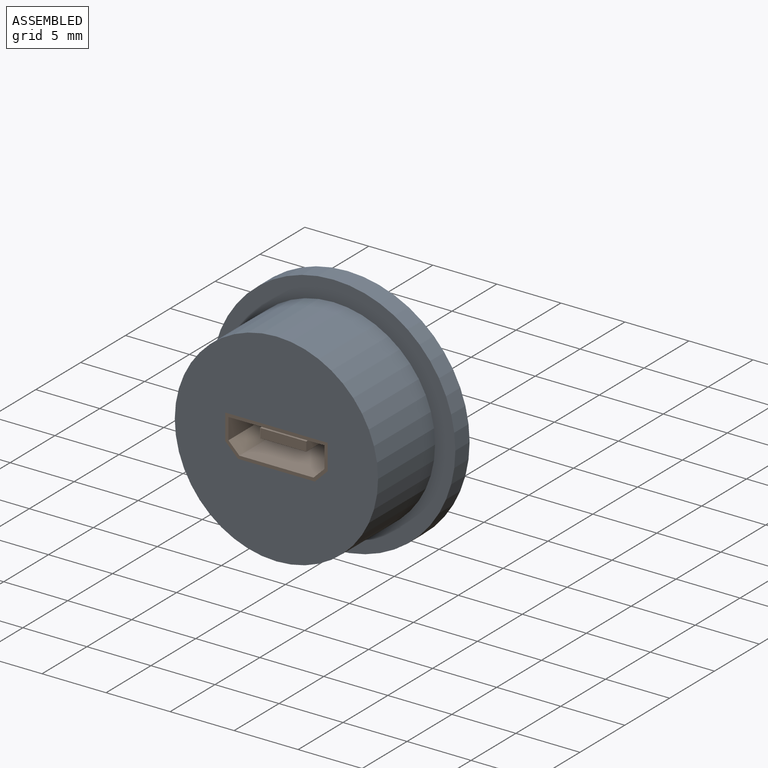
[diagram: assembled view]
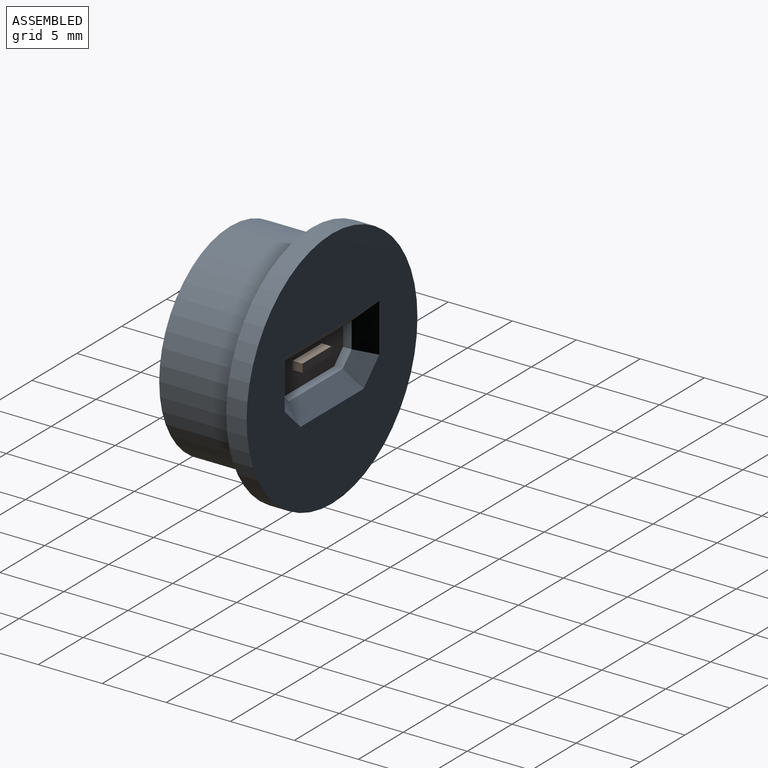
[diagram: assembled view, second angle]
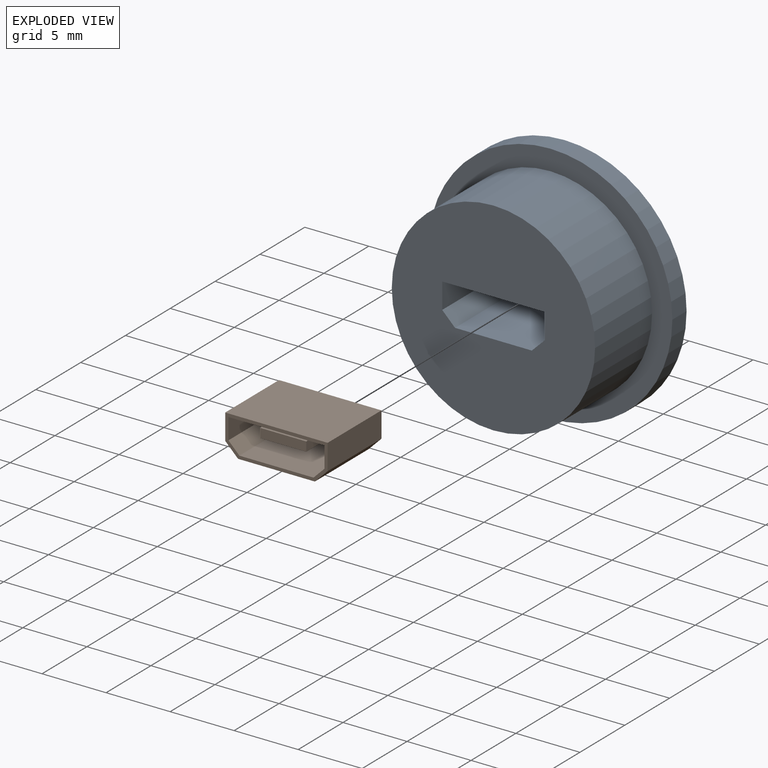
[diagram: exploded view]
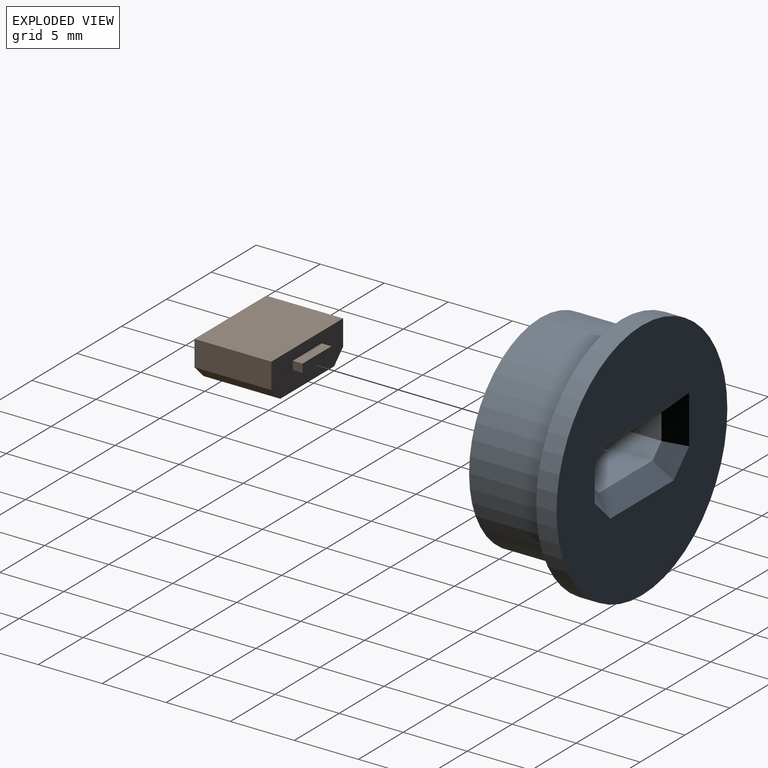
[diagram: exploded view, second angle]
ASSEMBLY  parts=2 mates=3
PART A: 17 faces, bbox 19.1x7.9x19.1 mm
  f0: plane 19.05x19.05mm, normal (0,1,0), area 229.7mm2, adj f1,f11,f12,f13,f14,f15,f16
  f1: cylinder r=9.53mm len=19.05mm, axis (0,-1,0), area 95mm2, adj f0,f2
  f2: plane 19.05x19.05mm, normal (0,-1,0), area 87.1mm2, adj f1,f3
  f3: cylinder r=7.94mm len=15.88mm, axis (0,-1,0), area 316.7mm2, adj f2,f4
  f4: plane 15.88x15.88mm, normal (0,-1,0), area 174.9mm2, adj f3,f5,f6,f7,f8,f9,f10
  f5: plane 6.67x2mm, normal (-1,0,0), area 13.3mm2, adj f4,f6,f9,f14
  f6: plane 8x6.67mm, normal (0,0,-1), area 53.3mm2, adj f4,f5,f7,f16
  f7: plane 6.67x2mm, normal (1,0,0), area 13.3mm2, adj f4,f6,f8,f15
  f8: plane 6.67x1mm, normal (0.71,0,0.71), area 9.4mm2, adj f4,f7,f10,f13
  f9: plane 6.67x1mm, normal (-0.71,0,0.71), area 9.4mm2, adj f4,f5,f10,f12
  f10: plane 6.67x6mm, normal (0,0,1), area 40mm2, adj f4,f8,f9,f11
  f11: plane 7.05x1.27mm, normal (0,0.71,0.71), area 11.7mm2, adj f0,f10,f12,f13
  f12: plane 2.27x2.27mm, normal (-0.5,0.71,0.5), area 3.5mm2, adj f0,f9,f11,f14
  f13: plane 2.27x2.27mm, normal (0.5,0.71,0.5), area 3.5mm2, adj f0,f8,f11,f15
  f14: plane 3.8x1.27mm, normal (-0.71,0.71,0), area 5.2mm2, adj f0,f5,f12,f16
  f15: plane 3.8x1.27mm, normal (0.71,0.71,0), area 5.2mm2, adj f0,f7,f13,f16
  f16: plane 10.54x1.27mm, normal (0,0.71,-0.71), area 16.6mm2, adj f0,f6,f14,f15
PART B: 25 faces, bbox 8x6.8x3 mm
  f0: plane 8x3mm, normal (0,-1,0), area 5mm2, adj f1,f2,f3,f4,f5,f6,f8,f9
  f1: plane 6x6mm, normal (0,0,-1), area 36mm2, adj f0,f2,f6,f7
  f2: plane 6x1mm, normal (0.71,0,-0.71), area 8.5mm2, adj f0,f1,f3,f7
  f3: plane 6x2mm, normal (1,0,0), area 12mm2, adj f0,f2,f4,f7
  f4: plane 8x6mm, normal (0,0,1), area 48mm2, adj f0,f3,f5,f7
  f5: plane 6x2mm, normal (-1,0,0), area 12mm2, adj f0,f4,f6,f7
  f6: plane 6x1mm, normal (-0.71,0,-0.71), area 8.5mm2, adj f0,f1,f5,f7
  f7: plane 8x3mm, normal (0,1,0), area 20.9mm2, adj f1,f2,f3,f4,f5,f6,f20,f21
  f8: plane 5.79x5.75mm, normal (0,0,1), area 33.3mm2, adj f0,f9,f13,f14
  f9: plane 5.75x0.85mm, normal (-0.71,0,0.71), area 6.9mm2, adj f0,f8,f10,f14
  f10: plane 5.75x1.65mm, normal (-1,0,0), area 9.5mm2, adj f0,f9,f11,f14
  f11: plane 7.5x5.75mm, normal (0,0,-1), area 43.1mm2, adj f0,f10,f12,f14
  f12: plane 5.75x1.65mm, normal (1,0,0), area 9.5mm2, adj f0,f11,f13,f14
  f13: plane 5.75x0.85mm, normal (0.71,0,0.71), area 6.9mm2, adj f0,f8,f12,f14
  f14: plane 7.5x2.5mm, normal (0,-1,0), area 15.4mm2, adj f8,f9,f10,f11,f12,f13,f15,f16
  f15: plane 5x3.6mm, normal (0,0,1), area 18mm2, adj f14,f16,f18,f19
  f16: plane 5x0.72mm, normal (-1,0,0), area 3.6mm2, adj f14,f15,f17,f19
  f17: plane 5x3.6mm, normal (0,0,-1), area 18mm2, adj f14,f16,f18,f19
  f18: plane 5x0.72mm, normal (1,0,0), area 3.6mm2, adj f14,f15,f17,f19
  f19: plane 3.6x0.72mm, normal (0,-1,0), area 2.6mm2, adj f15,f16,f17,f18
  f20: plane 3.21x0.76mm, normal (0,0,-1), area 2.4mm2, adj f7,f21,f23,f24
  f21: plane 0.76x0.65mm, normal (-1,0,0), area 0.5mm2, adj f7,f20,f22,f24
  f22: plane 3.21x0.76mm, normal (0,0,1), area 2.4mm2, adj f7,f21,f23,f24
  f23: plane 0.76x0.65mm, normal (1,0,0), area 0.5mm2, adj f7,f20,f22,f24
  f24: plane 3.21x0.65mm, normal (0,1,0), area 2.1mm2, adj f20,f21,f22,f23
PLACE A t=(0,-6,0)mm
PLACE B at identity fixed
MATE planar A.f4 <-> B.f0  axis (0,-1,0) through (0,-6,1.5)mm
MATE planar A.f6 <-> B.f4  axis (0,0,-1) through (0,-2.67,1.5)mm
MATE planar A.f5 <-> B.f3  axis (-1,0,0) through (4,-2.67,0.5)mm
